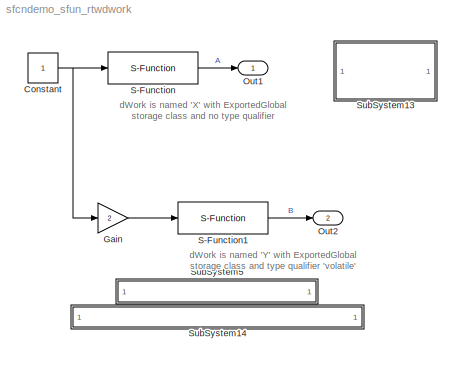
MODEL sfcndemo_sfun_rtwdwork
KIND model
BLOCK [Constant] Constant
BLOCK [Gain] Gain
  Gain = 2
  SaturateOnIntegerOverflow = off
BLOCK [Outport] Out1
  IconDisplay = Port number
BLOCK [Outport] Out2
  IconDisplay = Port number
  Port = 2
BLOCK [S-Function] S-Function
  FunctionName = sfun_rtwdwork
  MaskCallbackString = ||
  MaskEnableString = on,on,on
  MaskIconFrame = on
  MaskIconOpaque = on
  MaskIconRotate = none
  MaskIconUnits = autoscale
  MaskPromptString = RTW Identifier|RTW Storage Class|RTW Type Qualifier
  MaskStyleString = edit,popup(Auto|ExportedGlobal|ImportedExtern|ImportedExternPointer),edit
  MaskTabNameString = ,,
  MaskToolTipString = on,on,on
  MaskTunableValueString = on,on,on
  MaskValueString = 'X'|ExportedGlobal|''
  MaskVarAliasString = ,,
  MaskVariables = id=@1;sc=@2;tq=@3;
  MaskVisibilityString = on,on,on
  Parameters = id,sc,tq
  Ports = [1, 1]
BLOCK [S-Function] S-Function1
  FunctionName = sfun_rtwdwork
  MaskCallbackString = ||
  MaskEnableString = on,on,on
  MaskIconFrame = on
  MaskIconOpaque = on
  MaskIconRotate = none
  MaskIconUnits = autoscale
  MaskPromptString = RTW Identifier|RTW Storage Class|RTW Type Qualifier
  MaskStyleString = edit,popup(Auto|ExportedGlobal|ImportedExtern|ImportedExternPointer),edit
  MaskTabNameString = ,,
  MaskToolTipString = on,on,on
  MaskTunableValueString = on,on,on
  MaskValueString = 'Y'|ExportedGlobal|'volatile'
  MaskVarAliasString = ,,
  MaskVariables = id=@1;sc=@2;tq=@3;
  MaskVisibilityString = on,on,on
  Parameters = id,sc,tq
  Ports = [1, 1]
BLOCK [SubSystem] SubSystem13
  MaskDisplay = disp('Generate and\\ninspect code')
  MaskIconFrame = on
  MaskIconOpaque = on
  MaskIconRotate = none
  MaskIconUnits = autoscale
  MinAlgLoopOccurrences = off
  OpenFcn = rtwdwork_inspect('sfcndemo_sfun_rtwdwork.c');
  Ports = []
  PropExecContextAcrossSSBoundary = on
  RTWSystemCode = Auto
  TreatAsAtomicUnit = off
BLOCK [SubSystem] SubSystem14
  AttributesFormatString = <path>
  MaskDisplay = disp(x)
  MaskEnableString = on
  MaskIconFrame = on
  MaskIconOpaque = on
  MaskIconRotate = none
  MaskIconUnits = autoscale
  MaskInitialization = x=sfundemo_maskdisp;
  MaskPromptString = file name
  MaskStyleString = edit
  MaskToolTipString = on
  MaskTunableValueString = off
  MaskValueString = sfun_rtwdwork.tlc
  MaskVariables = filename=&1;
  MaskVisibilityString = on
  MinAlgLoopOccurrences = off
  OpenFcn = sfundemo_openfcn
  Ports = []
  PropExecContextAcrossSSBoundary = on
  RTWSystemCode = Auto
  TreatAsAtomicUnit = off
BLOCK [SubSystem] SubSystem5
  AttributesFormatString = <path>
  MaskDisplay = disp(x)
  MaskEnableString = on
  MaskIconFrame = on
  MaskIconOpaque = on
  MaskIconRotate = none
  MaskIconUnits = autoscale
  MaskInitialization = x=sfundemo_maskdisp;
  MaskPromptString = file name
  MaskStyleString = edit
  MaskToolTipString = on
  MaskTunableValueString = off
  MaskValueString = sfun_rtwdwork.c
  MaskVariables = filename=&1;
  MaskVisibilityString = on
  MinAlgLoopOccurrences = off
  OpenFcn = sfundemo_openfcn
  Ports = []
  PropExecContextAcrossSSBoundary = on
  RTWSystemCode = Auto
  TreatAsAtomicUnit = off
ANNOTATION (root): dWork is named 'X' with ExportedGlobal\nstorage class and no type qualifier
ANNOTATION (root): dWork is named 'Y' with ExportedGlobal\nstorage class and type qualifier 'volatile'
NET Constant:1 -> Gain:1, S-Function:1
LINE Gain:1 -> S-Function1:1
LINE S-Function1:1 -> Out2:1
LINE S-Function:1 -> Out1:1
note: NET lines group one-source signal fan-out (src -> all destinations, sorted); 1:1 wires keep LINE
note: 2 file-system paths scrubbed to <path> (not preserved elsewhere — flat text is the only slx artifact)
